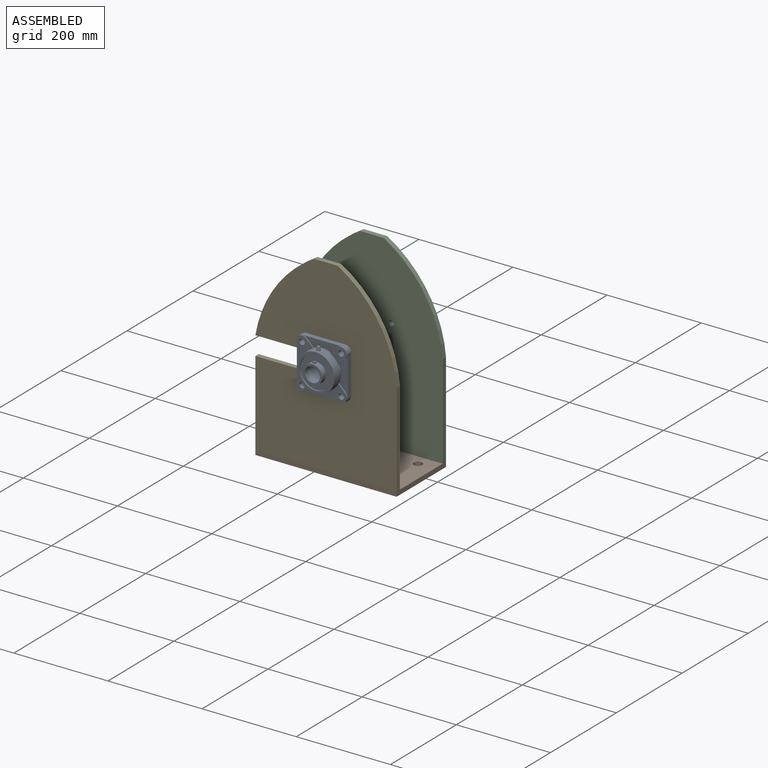
[diagram: assembled view]
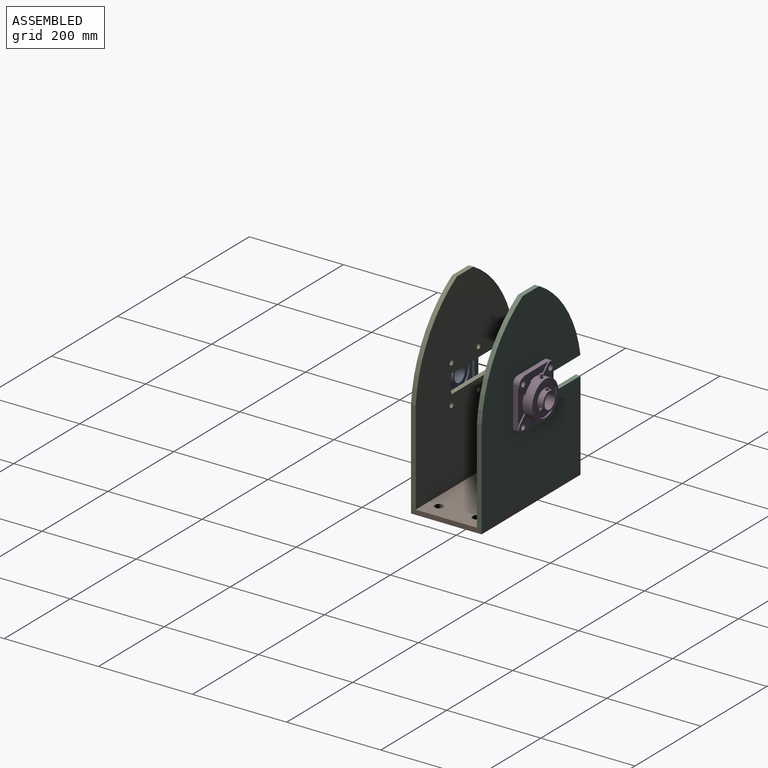
[diagram: assembled view, second angle]
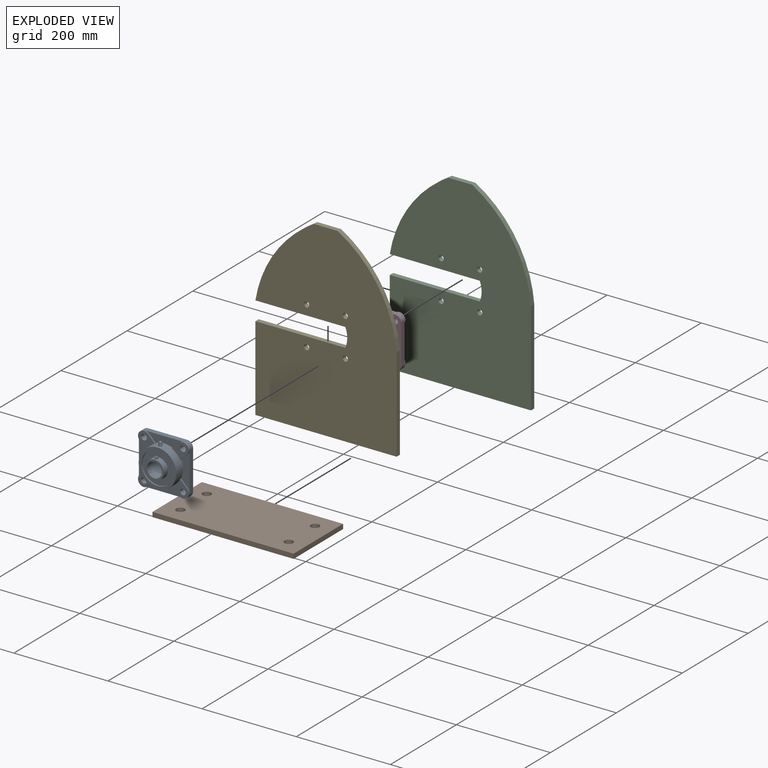
[diagram: exploded view]
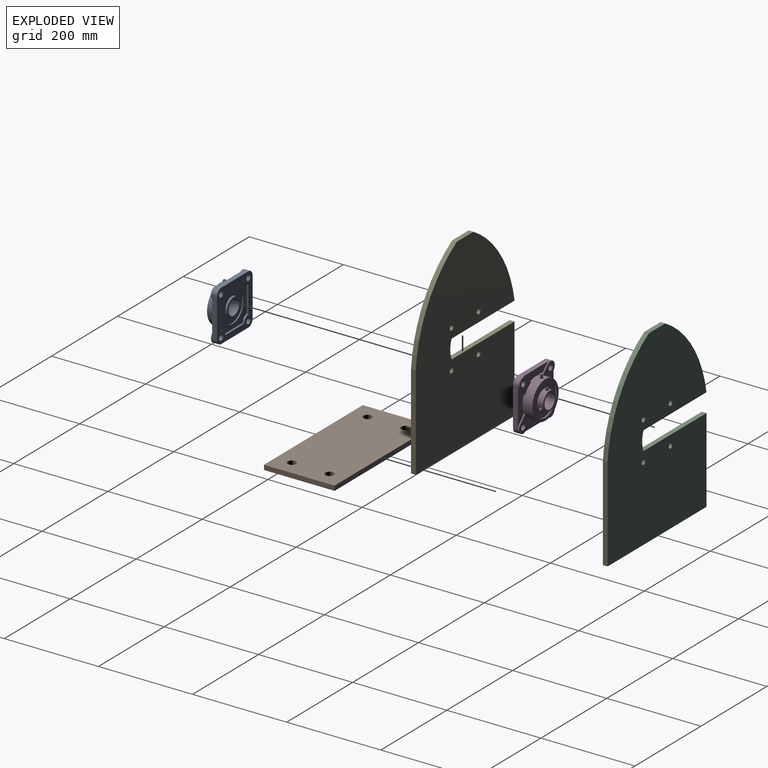
[diagram: exploded view, second angle]
ASSEMBLY  parts=5 mates=4
PART A: 120 faces, bbox 108.3x40.5x108.3 mm
  f0: plane 3.83x2.77mm, normal (-0.5,0.87,0), area 9mm2, adj f1,f2,f14,f15,f16,f17
  f1: cone r=3.5mm half-angle=60deg, axis (0,0,-1), area 1.2mm2, adj f0,f2,f4,f5
  f2: plane 3.83x2.77mm, normal (0.5,0.87,0), area 9mm2, adj f0,f1,f3,f9,f10,f14
  f3: cone r=3.5mm half-angle=60deg, axis (0,0,-1), area 1.2mm2, adj f2,f4,f9
  f4: cone r=2.96mm half-angle=24.1deg, axis (0,0,-1), area 13.4mm2, adj f1,f3,f5,f6,f8,f116
  f5: cone r=2.96mm half-angle=24.1deg, axis (0,0,-1), area 13.4mm2, adj f1,f4,f6,f17,f18,f115
  f6: cone r=3.5mm half-angle=60deg, axis (0,0,-1), area 1.2mm2, adj f4,f5,f7,f19
  f7: plane 3.83x2.77mm, normal (0.5,-0.87,0), area 9mm2, adj f6,f8,f9,f12,f19,f114
  f8: cone r=3.5mm half-angle=60deg, axis (0,0,-1), area 1.2mm2, adj f4,f7,f9
  f9: plane 4.37x2.77mm, normal (1,0,0), area 9mm2, adj f2,f3,f7,f8,f10,f114
  f10: cone r=4.2mm half-angle=60deg, axis (0,0,1), area 1.2mm2, adj f2,f9,f21
  f11: cylinder r=3.5mm len=1.75mm, axis (0,0,1), area 0mm2, adj f14,f21
  f12: cone r=4.2mm half-angle=60deg, axis (0,0,1), area 1.2mm2, adj f7,f13,f19,f21
  f13: cylinder r=3.5mm len=1.75mm, axis (0,0,1), area 0mm2, adj f12,f21
  f14: cone r=4.2mm half-angle=60deg, axis (0,0,1), area 1.2mm2, adj f0,f2,f11,f21
  f15: cone r=4.2mm half-angle=60deg, axis (0,0,1), area 1.1mm2, adj f0,f16,f21
  f16: plane 4.37x2.77mm, normal (-1,0,0), area 9mm2, adj f0,f15,f17,f18,f19,f20
  f17: cone r=3.5mm half-angle=60deg, axis (0,0,-1), area 1.2mm2, adj f0,f5,f16
  f18: cone r=3.5mm half-angle=60deg, axis (0,0,-1), area 1.2mm2, adj f5,f16,f19
  f19: plane 3.83x2.77mm, normal (-0.5,-0.87,0), area 9mm2, adj f6,f7,f12,f16,f18,f20
  f20: cone r=4.2mm half-angle=60deg, axis (0,0,1), area 1.4mm2, adj f16,f19,f21
  f21: cylinder r=40mm len=80mm, axis (0,-1,0), area 2423mm2, adj f10,f11,f12,f13,f14,f15,f20,f22
  f22: cylinder r=40mm len=80mm, axis (0,-1,0), area 2456.5mm2, adj f21,f23,f30,f31,f32,f33,f36,f44
  f23: plane 83x18.29mm, normal (0,-1,0), area 896.6mm2, adj f21,f22,f24,f36,f37,f38,f39
  f24: plane 14.63x14.63mm, normal (0.71,0,-0.71), area 53.8mm2, adj f21,f23,f25,f39
  f25: plane 35.97x35.97mm, normal (0,-1,0), area 616.1mm2, adj f21,f24,f26,f27,f39,f40
  f26: cylinder r=6mm len=13mm, axis (0,-1,0), area 245mm2, adj f25,f27,f28
  f27: cylinder r=6mm len=13mm, axis (0,-1,0), area 245mm2, adj f25,f26,f28
  f28: plane 108x108mm, normal (0,1,0), area 4679.4mm2, adj f26,f27,f29,f34,f35,f37,f38,f39
  f29: cylinder r=12.5mm len=21.34mm, axis (0,-1,0), area 306.3mm2, adj f28,f30,f31,f44,f45,f46,f49,f55
  f30: plane 14.63x14.63mm, normal (0.71,0,-0.71), area 53.8mm2, adj f22,f29,f31,f46
  f31: plane 83x18.29mm, normal (0,-1,0), area 896.6mm2, adj f22,f29,f30,f32,f37,f55
  f32: plane 14.63x14.63mm, normal (-0.71,0,-0.71), area 53.8mm2, adj f22,f31,f33,f37
  f33: plane 35.97x35.97mm, normal (0,-1,0), area 616.1mm2, adj f22,f32,f34,f35,f36,f37
  f34: cylinder r=6mm len=13mm, axis (0,-1,0), area 245mm2, adj f28,f33,f35
  f35: cylinder r=6mm len=13mm, axis (0,-1,0), area 245mm2, adj f28,f33,f34
  f36: plane 14.63x14.63mm, normal (0.71,0,0.71), area 53.8mm2, adj f22,f23,f33,f37
  f37: cylinder r=12.5mm len=21.34mm, axis (0,-1,0), area 306.3mm2, adj f23,f28,f31,f32,f33,f36,f38,f55
  f38: plane 83x10.4mm, normal (1,0,0), area 863.2mm2, adj f23,f28,f37,f39
  f39: cylinder r=12.5mm len=21.34mm, axis (0,-1,0), area 306.3mm2, adj f23,f24,f25,f28,f38,f40,f41,f54
  f40: plane 14.63x14.63mm, normal (-0.71,0,0.71), area 53.8mm2, adj f21,f25,f39,f41
  f41: plane 83x18.29mm, normal (0,-1,0), area 896.6mm2, adj f21,f39,f40,f42,f53,f54
  f42: cylinder r=12.5mm len=21.34mm, axis (0,-1,0), area 306.3mm2, adj f28,f41,f43,f44,f49,f50,f53,f54
  f43: plane 14.63x14.63mm, normal (-0.71,0,-0.71), area 53.8mm2, adj f21,f42,f44,f50
  f44: plane 83x18.29mm, normal (0,-1,0), area 896.6mm2, adj f21,f22,f29,f42,f43,f45,f49
  f45: plane 14.63x14.63mm, normal (-0.71,0,0.71), area 53.8mm2, adj f22,f29,f44,f46
  f46: plane 35.97x35.97mm, normal (0,-1,0), area 616.1mm2, adj f22,f29,f30,f45,f47,f48
  f47: cylinder r=6mm len=13mm, axis (0,-1,0), area 245mm2, adj f28,f46,f48
  f48: cylinder r=6mm len=13mm, axis (0,-1,0), area 245mm2, adj f28,f46,f47
  f49: plane 83x10.4mm, normal (-1,0,0), area 863.2mm2, adj f28,f29,f42,f44
  f50: plane 35.97x35.97mm, normal (0,-1,0), area 616.1mm2, adj f21,f42,f43,f51,f52,f53
  f51: cylinder r=6mm len=13mm, axis (0,-1,0), area 245mm2, adj f28,f50,f52
  f52: cylinder r=6mm len=13mm, axis (0,-1,0), area 245mm2, adj f28,f50,f51
  f53: plane 14.63x14.63mm, normal (0.71,0,0.71), area 53.8mm2, adj f21,f41,f42,f50
  f54: plane 83x10.4mm, normal (0,0,1), area 863.2mm2, adj f28,f39,f41,f42
  f55: plane 83x10.4mm, normal (0,0,-1), area 863.2mm2, adj f28,f29,f31,f37
  f56: cylinder r=12.5mm len=12.5mm, axis (0,-1,0), area 76.6mm2, adj f28,f57,f63,f64
  f57: plane 58x3.9mm, normal (1,0,0), area 226.2mm2, adj f28,f56,f58,f64
  f58: cylinder r=12.5mm len=12.5mm, axis (0,-1,0), area 76.6mm2, adj f28,f57,f59,f64
  f59: plane 58x3.9mm, normal (0,0,1), area 226.2mm2, adj f28,f58,f60,f64
  f60: cylinder r=12.5mm len=12.5mm, axis (0,-1,0), area 76.6mm2, adj f28,f59,f61,f64
  f61: plane 58x3.9mm, normal (-1,0,0), area 226.2mm2, adj f28,f60,f62,f64
  f62: cylinder r=12.5mm len=12.5mm, axis (0,-1,0), area 76.6mm2, adj f28,f61,f63,f64
  f63: plane 58x3.9mm, normal (0,0,-1), area 226.2mm2, adj f28,f56,f62,f64
  f64: plane 83x83mm, normal (0,1,0), area 3181.1mm2, adj f56,f57,f58,f59,f60,f61,f62,f63
  f65: cylinder r=32mm len=64mm, axis (0,-1,0), area 261.4mm2, adj f64,f66,f67
  f66: cylinder r=32mm len=64mm, axis (0,-1,0), area 261.4mm2, adj f64,f65,f67
  f67: plane 64x64mm, normal (0,1,0), area 1935.1mm2, adj f65,f66,f68,f69
  f68: cylinder r=20.2mm len=40.4mm, axis (0,-1,0), area 279.2mm2, adj f67,f69,f70
  f69: cylinder r=20.2mm len=40.4mm, axis (0,-1,0), area 279.2mm2, adj f67,f68,f70
  f70: plane 40.4x40.4mm, normal (0,1,0), area 490.2mm2, adj f68,f69,f71,f77
  f71: cylinder r=15.88mm len=38.1mm, axis (0,-1,0), area 1868.3mm2, adj f70,f72,f73,f77,f83
  f72: cylinder r=3.17mm len=5.93mm, axis (-0.87,0,-0.5), area 8.6mm2, adj f71,f73,f75
  f73: cylinder r=3.17mm len=5.93mm, axis (-0.87,0,-0.5), area 8.6mm2, adj f71,f72,f74
  f74: cone r=3.17mm half-angle=45deg, axis (-0.87,0,-0.5), area 7mm2, adj f73,f75,f76
  f75: cone r=3.17mm half-angle=45deg, axis (-0.87,0,-0.5), area 7mm2, adj f72,f74,f76
  f76: plane 5.27x4.56mm, normal (0.87,0,0.5), area 21.8mm2, adj f74,f75
  f77: cylinder r=15.88mm len=38.1mm, axis (0,-1,0), area 1868.3mm2, adj f70,f71,f78,f79,f83
  f78: cylinder r=3.17mm len=6.35mm, axis (0,0,1), area 7mm2, adj f77,f79,f81
  f79: cylinder r=3.17mm len=6.35mm, axis (0,0,1), area 7mm2, adj f77,f78,f80
  f80: cone r=3.17mm half-angle=45deg, axis (0,0,1), area 7mm2, adj f79,f81,f82
  f81: cone r=3.17mm half-angle=45deg, axis (0,0,1), area 7mm2, adj f78,f80,f82
  f82: plane 5.27x5.27mm, normal (0,0,-1), area 21.8mm2, adj f80,f81
  f83: plane 40.4x40.4mm, normal (0,-1,0), area 490.2mm2, adj f71,f77,f84,f97
  f84: cylinder r=20.2mm len=40.4mm, axis (0,-1,0), area 748.8mm2, adj f83,f85,f86,f97,f110
  f85: cylinder r=3.17mm len=7.25mm, axis (-0.87,0,-0.5), area 33.8mm2, adj f84,f86,f88
  f86: cylinder r=3.17mm len=7.25mm, axis (-0.87,0,-0.5), area 35mm2, adj f84,f85,f87
  f87: cone r=2.63mm half-angle=45deg, axis (0.87,0,0.5), area 7mm2, adj f86,f88,f89
  f88: cone r=2.63mm half-angle=45deg, axis (0.87,0,0.5), area 7mm2, adj f85,f87,f89
  f89: plane 5.27x4.56mm, normal (-0.87,0,-0.5), area 14mm2, adj f87,f88,f90,f91,f92,f93,f94,f95
  f90: plane 3.35x2.8mm, normal (0.25,-0.87,-0.43), area 5.2mm2, adj f89,f91,f95,f96
  f91: plane 2.6x1.73mm, normal (0.5,0,-0.87), area 5.2mm2, adj f89,f90,f92,f96
  f92: plane 3.35x2.8mm, normal (0.25,0.87,-0.43), area 5.2mm2, adj f89,f91,f93,f96
  f93: plane 3.35x2.8mm, normal (-0.25,0.87,0.43), area 5.2mm2, adj f89,f92,f94,f96
  f94: plane 2.6x1.73mm, normal (-0.5,0,0.87), area 5.2mm2, adj f89,f93,f95,f96
  f95: plane 3.35x2.8mm, normal (-0.25,-0.87,0.43), area 5.2mm2, adj f89,f90,f94,f96
  f96: plane 3.46x2.6mm, normal (-0.87,0,-0.5), area 7.8mm2, adj f90,f91,f92,f93,f94,f95
  f97: cylinder r=20.2mm len=40.4mm, axis (0,-1,0), area 748.8mm2, adj f83,f84,f98,f99,f110
  f98: cylinder r=3.17mm len=6.35mm, axis (0,0,1), area 32.5mm2, adj f97,f99,f101
  f99: cylinder r=3.17mm len=6.35mm, axis (0,0,1), area 32.5mm2, adj f97,f98,f100
  f100: cone r=2.63mm half-angle=45deg, axis (0,0,-1), area 7mm2, adj f99,f101,f102
  f101: cone r=2.63mm half-angle=45deg, axis (0,0,-1), area 7mm2, adj f98,f100,f102
  f102: plane 5.27x5.27mm, normal (0,0,1), area 14mm2, adj f100,f101,f103,f105,f106,f107,f108,f109
  f103: plane 3x1.73mm, normal (-1,0,0), area 5.2mm2, adj f102,f104,f106,f109
  f104: plane 3.46x3mm, normal (0,0,1), area 7.8mm2, adj f103,f105,f106,f107,f108,f109
  f105: plane 3x1.5mm, normal (0.5,-0.87,0), area 5.2mm2, adj f102,f104,f106,f107
  f106: plane 3x1.5mm, normal (-0.5,-0.87,0), area 5.2mm2, adj f102,f103,f104,f105
  f107: plane 3x1.73mm, normal (1,0,0), area 5.2mm2, adj f102,f104,f105,f108
  f108: plane 3x1.5mm, normal (0.5,0.87,0), area 5.2mm2, adj f102,f104,f107,f109
  f109: plane 3x1.5mm, normal (-0.5,0.87,0), area 5.2mm2, adj f102,f103,f104,f108
  f110: plane 68x68mm, normal (0,-1,0), area 2349.8mm2, adj f84,f97,f111,f112
  f111: cylinder r=34mm len=68mm, axis (0,-1,0), area 331.1mm2, adj f110,f112,f113
  f112: cylinder r=34mm len=68mm, axis (0,-1,0), area 331.1mm2, adj f110,f111,f113
  f113: plane 80x80mm, normal (0,-1,0), area 1394.9mm2, adj f21,f22,f111,f112
  f114: cone r=4.2mm half-angle=60deg, axis (0,0,1), area 1.1mm2, adj f7,f9,f21
  f115: cone r=3.46mm half-angle=15.9deg, axis (0,0,1), area 18.4mm2, adj f5,f116,f118
  f116: cone r=3.46mm half-angle=15.9deg, axis (0,0,1), area 18.4mm2, adj f4,f115,f117
  f117: cone r=2.56mm half-angle=18.4deg, axis (0,0,-1), area 26.9mm2, adj f116,f118,f119
  f118: cone r=2.56mm half-angle=18.4deg, axis (0,0,-1), area 26.9mm2, adj f115,f117,f119
  f119: plane 5.12x5.12mm, normal (0,0,1), area 20.6mm2, adj f117,f118
PART B: 10 faces, bbox 150x10x300 mm
  f0: plane 300x10mm, normal (-1,0,0), area 3000mm2, adj f1,f3,f4,f5
  f1: plane 150x10mm, normal (0,0,-1), area 1500mm2, adj f0,f2,f4,f5
  f2: plane 300x10mm, normal (1,0,0), area 3000mm2, adj f1,f3,f4,f5
  f3: plane 150x10mm, normal (0,0,1), area 1500mm2, adj f0,f2,f4,f5
  f4: plane 300x150mm, normal (0,-1,0), area 43982.1mm2, adj f0,f1,f2,f3,f6,f7,f8,f9
  f5: plane 300x150mm, normal (0,1,0), area 43982.1mm2, adj f0,f1,f2,f3,f6,f7,f8,f9
  f6: cylinder r=9mm len=18mm, axis (0,-1,0), area 565.5mm2, adj f4,f5
  f7: cylinder r=9mm len=18mm, axis (0,-1,0), area 565.5mm2, adj f4,f5
  f8: cylinder r=9mm len=18mm, axis (0,-1,0), area 565.5mm2, adj f4,f5
  f9: cylinder r=9mm len=18mm, axis (0,-1,0), area 565.5mm2, adj f4,f5
PART C: 15 faces, bbox 300x10x400 mm
  f0: plane 200x10mm, normal (1,0,0), area 2000mm2, adj f1,f8,f9,f10
  f1: cylinder r=256.54mm len=200mm, axis (0,1,0), area 2450.6mm2, adj f0,f2,f9,f10
  f2: plane 50x10mm, normal (0,0,1), area 500mm2, adj f1,f3,f9,f10
  f3: cylinder r=256.54mm len=180mm, axis (0,1,0), area 2264.2mm2, adj f2,f4,f9,f10
  f4: plane 191x10mm, normal (0,0,-1), area 1910mm2, adj f3,f5,f9,f10
  f5: cylinder r=50mm len=40mm, axis (0,1,0), area 411.5mm2, adj f4,f6,f9,f10
  f6: plane 191x10mm, normal (0,0,1), area 1910mm2, adj f5,f7,f9,f10
  f7: plane 180x10mm, normal (-1,0,0), area 1800mm2, adj f6,f8,f9,f10
  f8: plane 300x10mm, normal (0,0,-1), area 3000mm2, adj f0,f7,f9,f10
  f9: plane 400x300mm, normal (0,-1,0), area 96311.4mm2, adj f0,f1,f2,f3,f4,f5,f6,f7
  f10: plane 400x300mm, normal (0,1,0), area 96311.4mm2, adj f0,f1,f2,f3,f4,f5,f6,f7
  f11: cylinder r=5.5mm len=11mm, axis (0,-1,0), area 345.6mm2, adj f9,f10
  f12: cylinder r=5.5mm len=11mm, axis (0,-1,0), area 345.6mm2, adj f9,f10
  f13: cylinder r=5.5mm len=11mm, axis (0,-1,0), area 345.6mm2, adj f9,f10
  f14: cylinder r=5.5mm len=11mm, axis (0,-1,0), area 345.6mm2, adj f9,f10
PART D: same geometry as A
PART E: same geometry as C
PLACE A t=(-163.76,94.68,174.88)mm
PLACE B rot(axis=(-0.58,0.58,-0.58),120deg) t=(-313.26,244.68,-34.62)mm
PLACE C t=(-163.26,244.68,-24.62)mm
PLACE D rot(axis=(0,0,1),180deg) t=(-162.76,244.68,174.88)mm
PLACE E t=(-163.26,104.68,-24.62)mm
MATE fastened E.f8 <-> B.f4  axis (0,0,1) through (-13.26,104.68,-24.62)mm
MATE fastened A.f26 <-> E.f12  axis (0,-1,0) through (-122.26,94.68,216.38)mm
MATE fastened D.f26 <-> C.f11  axis (0,1,0) through (-204.26,244.68,216.38)mm
MATE fastened B.f3 <-> C.f0  axis (1,0,0) through (-13.26,244.68,-24.62)mm
